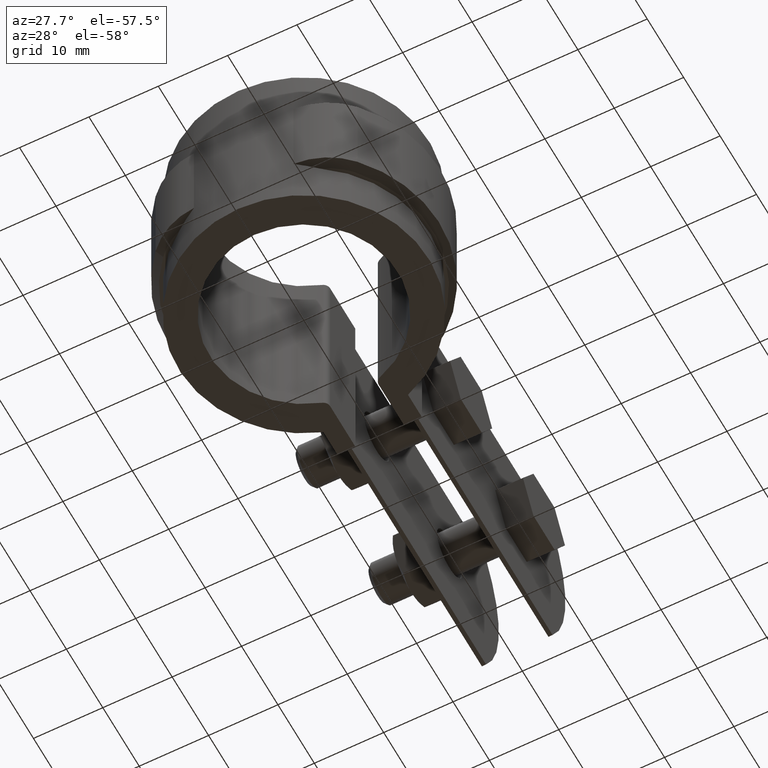
[diagram: clean part render]
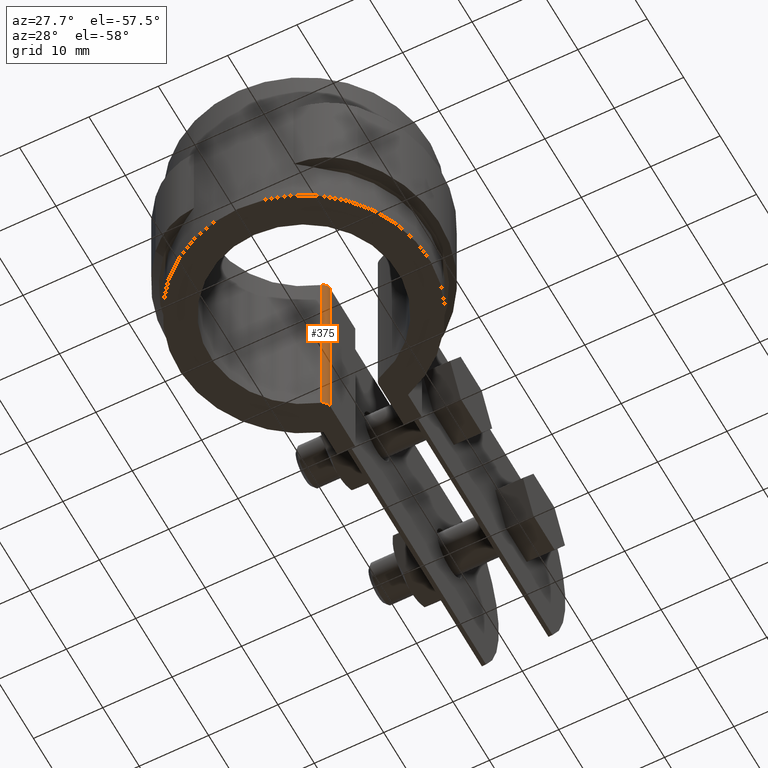
[diagram: same view with one face highlighted and labeled with its STEP entity id]
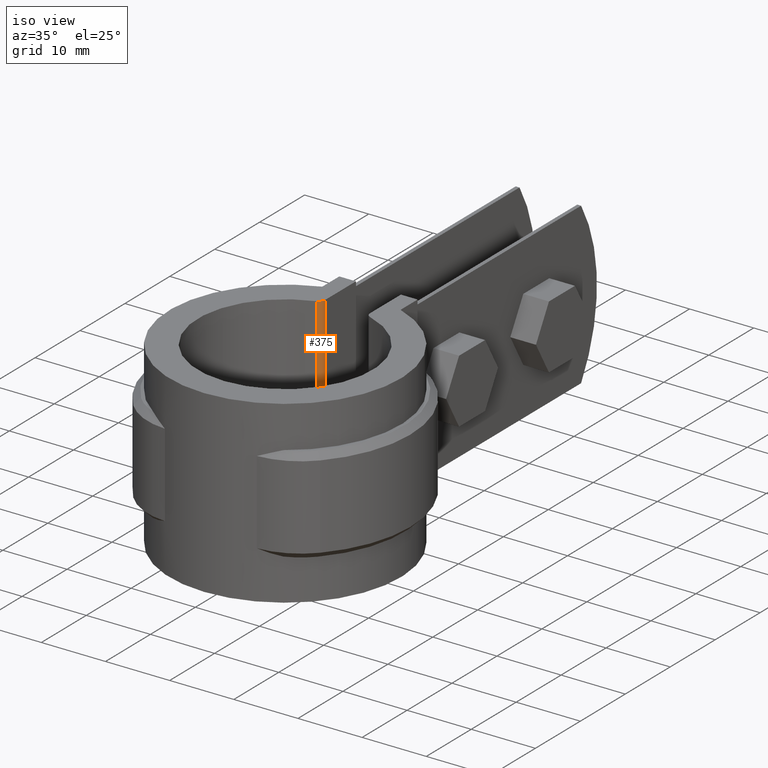
[diagram: same view with one face highlighted and labeled with its STEP entity id]
A machine part, auxiliary view. The second image highlights one B-rep face of the part: STEP entity #375.
A second angle (iso view) of the same face is appended — the face is thin or edge-on in the first view.
In plain terms, the highlighted cylindrical surface (edge-blend (fillet) strip) has radius 1 mm, axis along (0, 0, -1).
Its self-contained STEP definition (entity closure, byte-faithful):
#375 = ADVANCED_FACE( '', ( #635 ), #636, .T. );
#635 = FACE_OUTER_BOUND( '', #1229, .T. );
#636 = CYLINDRICAL_SURFACE( '', #1230, 1.00000000000000 );
#1229 = EDGE_LOOP( '', ( #2546, #2547, #2548, #2549 ) );
#1230 = AXIS2_PLACEMENT_3D( '', #2550, #2551, #2552 );
#2546 = ORIENTED_EDGE( '', *, *, #4047, .F. );
#2547 = ORIENTED_EDGE( '', *, *, #4048, .F. );
#2548 = ORIENTED_EDGE( '', *, *, #3971, .F. );
#2549 = ORIENTED_EDGE( '', *, *, #4049, .F. );
#2550 = CARTESIAN_POINT( '', ( -4.50000000000001, 13.8892044408598, -64.3703924986111 ) );
#2551 = DIRECTION( '', ( 0.000000000000000, 0.000000000000000, -1.00000000000000 ) );
#2552 = DIRECTION( '', ( 1.00000000000000, 0.000000000000000, 0.000000000000000 ) );
#3971 = EDGE_CURVE( '', #4561, #4563, #4564, .T. );
#4047 = EDGE_CURVE( '', #4701, #4702, #4703, .F. );
#4048 = EDGE_CURVE( '', #4563, #4701, #4704, .T. );
#4049 = EDGE_CURVE( '', #4702, #4561, #4705, .F. );
#4561 = VERTEX_POINT( '', #6121 );
#4563 = VERTEX_POINT( '', #6124 );
#4564 = CIRCLE( '', #6125, 1.00000000000000 );
#4701 = VERTEX_POINT( '', #6473 );
#4702 = VERTEX_POINT( '', #6474 );
#4703 = CIRCLE( '', #6475, 1.00000000000000 );
#4704 = LINE( '', #6476, #6477 );
#4705 = LINE( '', #6478, #6479 );
#6121 = CARTESIAN_POINT( '', ( -3.50000000000001, 13.8892044408598, -26.5000000000000 ) );
#6124 = CARTESIAN_POINT( '', ( -4.19178082191781, 12.9378890681982, -26.5000000000000 ) );
#6125 = AXIS2_PLACEMENT_3D( '', #7861, #7862, #7863 );
#6473 = CARTESIAN_POINT( '', ( -4.19178082191781, 12.9378890681982, 1.50000000000000 ) );
#6474 = CARTESIAN_POINT( '', ( -3.50000000000001, 13.8892044408598, 1.50000000000000 ) );
#6475 = AXIS2_PLACEMENT_3D( '', #7963, #7964, #7965 );
#6476 = CARTESIAN_POINT( '', ( -4.19178082191782, 12.9378890681982, -64.3703924986111 ) );
#6477 = VECTOR( '', #7966, 1000.00000000000 );
#6478 = CARTESIAN_POINT( '', ( -3.50000000000001, 13.8892044408598, -26.5000000000000 ) );
#6479 = VECTOR( '', #7967, 1000.00000000000 );
#7861 = CARTESIAN_POINT( '', ( -4.50000000000001, 13.8892044408598, -26.5000000000000 ) );
#7862 = DIRECTION( '', ( 0.000000000000000, 0.000000000000000, -1.00000000000000 ) );
#7863 = DIRECTION( '', ( -1.00000000000000, 0.000000000000000, 0.000000000000000 ) );
#7963 = CARTESIAN_POINT( '', ( -4.50000000000001, 13.8892044408598, 1.50000000000000 ) );
#7964 = DIRECTION( '', ( 0.000000000000000, 0.000000000000000, -1.00000000000000 ) );
#7965 = DIRECTION( '', ( -1.00000000000000, 0.000000000000000, 0.000000000000000 ) );
#7966 = DIRECTION( '', ( 0.000000000000000, 0.000000000000000, 1.00000000000000 ) );
#7967 = DIRECTION( '', ( 0.000000000000000, 0.000000000000000, 1.00000000000000 ) );